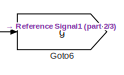
[diagram: root canvas - part 1/3, top center region]
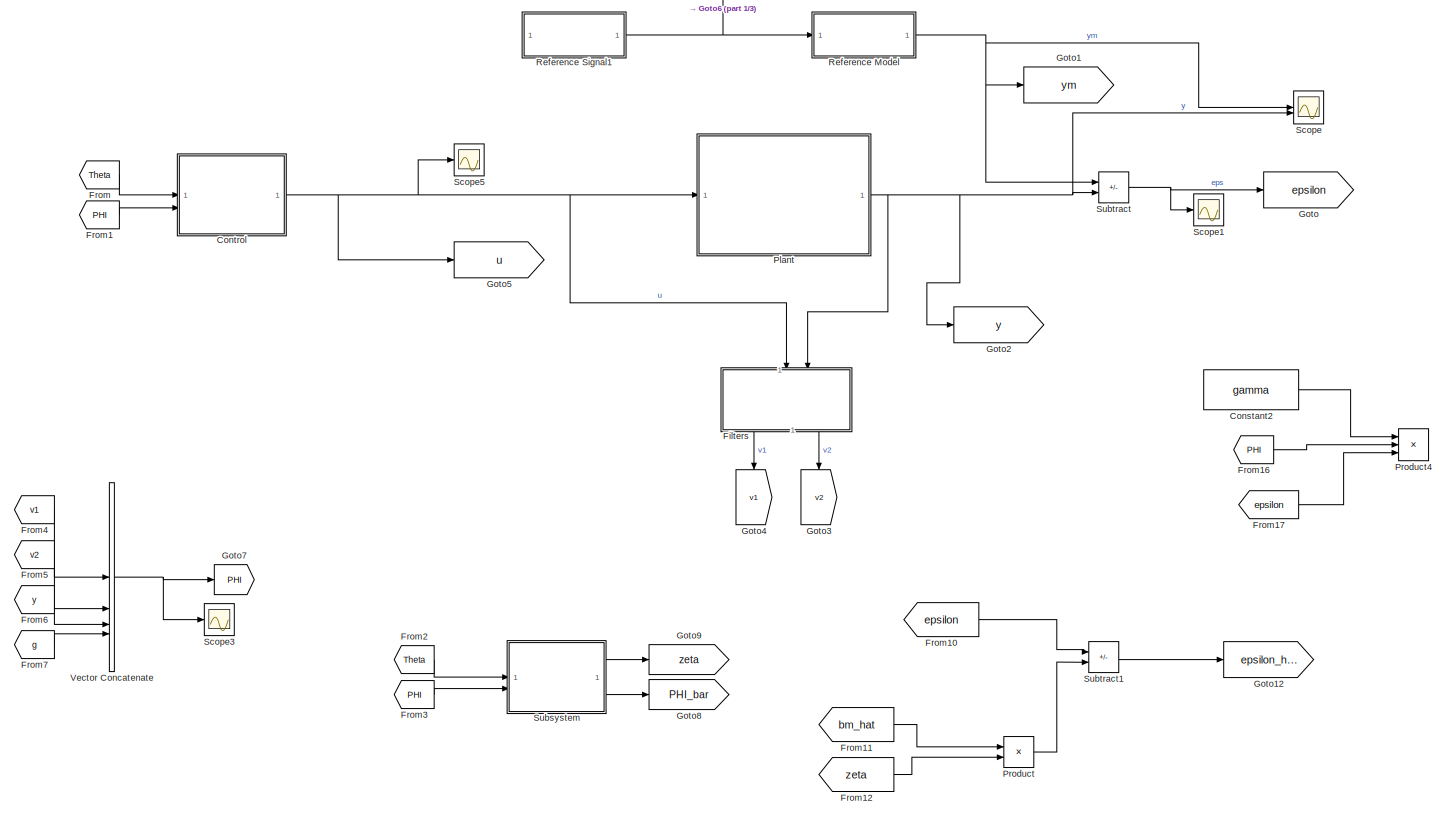
[diagram: root canvas - part 2/3, full width, middle band]
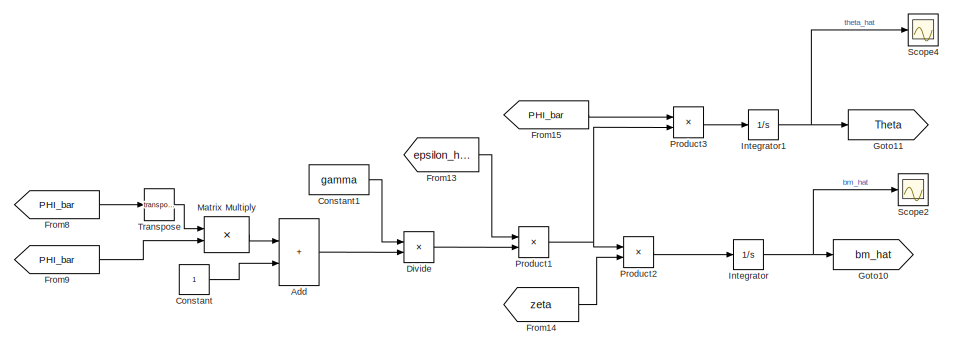
[diagram: root canvas - part 3/3, bottom center region]
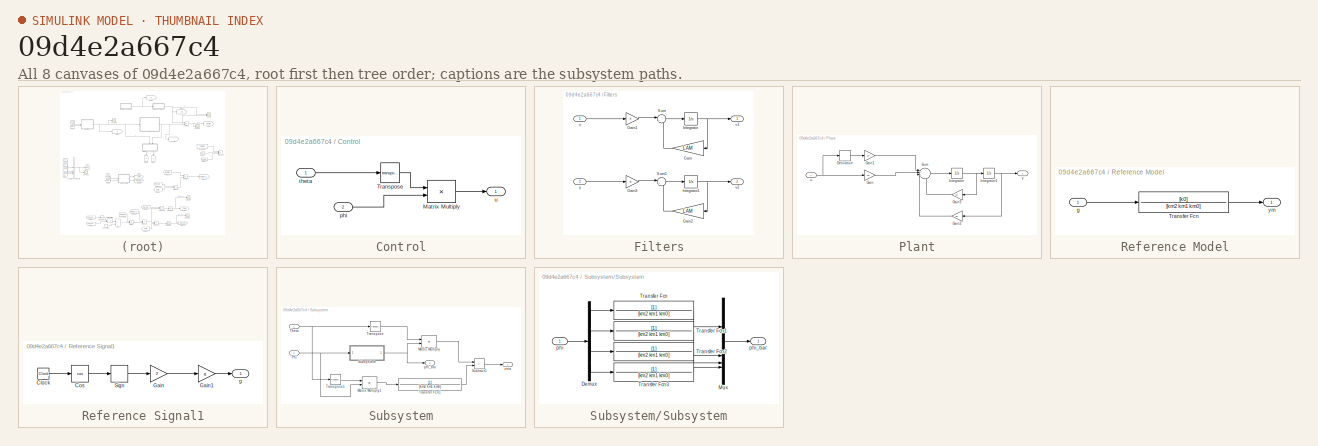
[diagram: thumbnail index - all 8 canvases of the model, root first then tree order]
MODEL slx_09d4e2a667c4
KIND model
CONFIG AbsTol = auto
CONFIG EnableMultiTasking = off
CONFIG FixedStep = auto
CONFIG MaxStep = auto
CONFIG MinStep = auto
CONFIG RelTol = 1e-3
CONFIG SampleTimeConstraint = Unconstrained
CONFIG SolverName = VariableStepAuto
CONFIG StartTime = 0.0
CONFIG StopTime = 100
BLOCK [Sum] Add
  IconShape = rectangular
BLOCK [Constant] Constant
BLOCK [Constant] Constant1
  Value = gamma
BLOCK [Constant] Constant2
  Value = gamma
BLOCK [SubSystem] Control
BLOCK [Product] Control/Matrix Multiply
  Multiplication = Matrix(*)
BLOCK [Math] Control/Transpose
  Operator = transpose
BLOCK [Inport] Control/phi
  Port = 2
BLOCK [Inport] Control/theta
BLOCK [Outport] Control/u
BLOCK [Product] Divide
  Inputs = */
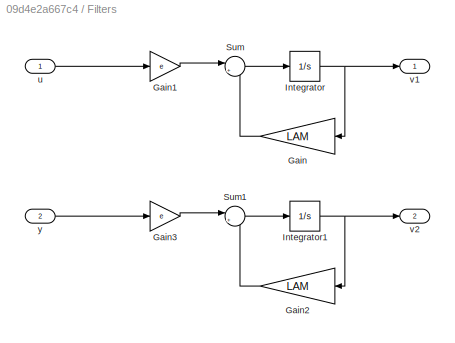
BLOCK [SubSystem] Filters
  NameLocation = left
BLOCK [Gain] Filters/Gain
  Gain = LAM
BLOCK [Gain] Filters/Gain1
  Gain = e
BLOCK [Gain] Filters/Gain2
  Gain = LAM
BLOCK [Gain] Filters/Gain3
  Gain = e
BLOCK [Integrator] Filters/Integrator
BLOCK [Integrator] Filters/Integrator1
  InitialCondition = y0
BLOCK [Sum] Filters/Sum
  Inputs = |++
BLOCK [Sum] Filters/Sum1
  Inputs = |++
BLOCK [Inport] Filters/u
BLOCK [Outport] Filters/v1
BLOCK [Outport] Filters/v2
  Port = 2
BLOCK [Inport] Filters/y
  Port = 2
BLOCK [From] From
  GotoTag = Theta
BLOCK [From] From1
  GotoTag = PHI
BLOCK [From] From10
  GotoTag = epsilon
BLOCK [From] From11
  GotoTag = bm_hat
BLOCK [From] From12
  GotoTag = zeta
BLOCK [From] From13
  GotoTag = epsilon_hat
BLOCK [From] From14
  GotoTag = zeta
BLOCK [From] From15
  GotoTag = PHI_bar
BLOCK [From] From16
  GotoTag = PHI
BLOCK [From] From17
  GotoTag = epsilon
BLOCK [From] From2
  GotoTag = Theta
BLOCK [From] From3
  GotoTag = PHI
BLOCK [From] From4
  GotoTag = v1
BLOCK [From] From5
  GotoTag = v2
BLOCK [From] From6
  GotoTag = y
BLOCK [From] From7
  GotoTag = g
BLOCK [From] From8
  GotoTag = PHI_bar
BLOCK [From] From9
  GotoTag = PHI_bar
BLOCK [Goto] Goto
  GotoTag = epsilon
BLOCK [Goto] Goto1
  GotoTag = ym
BLOCK [Goto] Goto10
  GotoTag = bm_hat
BLOCK [Goto] Goto11
  GotoTag = Theta
BLOCK [Goto] Goto12
  GotoTag = epsilon_hat
BLOCK [Goto] Goto2
  GotoTag = y
BLOCK [Goto] Goto3
  GotoTag = v2
  NameLocation = left
BLOCK [Goto] Goto4
  GotoTag = v1
  NameLocation = left
BLOCK [Goto] Goto5
  GotoTag = u
BLOCK [Goto] Goto6
  GotoTag = g
BLOCK [Goto] Goto7
  GotoTag = PHI
BLOCK [Goto] Goto8
  GotoTag = PHI_bar
BLOCK [Goto] Goto9
  GotoTag = zeta
BLOCK [Integrator] Integrator
BLOCK [Integrator] Integrator1
BLOCK [Product] Matrix Multiply
  Multiplication = Matrix(*)
BLOCK [SubSystem] Plant
BLOCK [Derivative] Plant/Derivative
  CoefficientInTFapproximation = 0
BLOCK [Gain] Plant/Gain
  Gain = b0
BLOCK [Gain] Plant/Gain1
  Gain = b1
BLOCK [Gain] Plant/Gain2
  Gain = a0
BLOCK [Gain] Plant/Gain3
  Gain = a1
BLOCK [Integrator] Plant/Integrator
  InitialCondition = dy0
BLOCK [Integrator] Plant/Integrator1
  InitialCondition = y0
BLOCK [Sum] Plant/Sum
  Inputs = |++--
BLOCK [Inport] Plant/u
BLOCK [Outport] Plant/y
BLOCK [Product] Product
BLOCK [Product] Product1
BLOCK [Product] Product2
BLOCK [Product] Product3
  Multiplication = Matrix(*)
BLOCK [Product] Product4
  Inputs = 3
BLOCK [SubSystem] Reference Model
BLOCK [TransferFcn] Reference Model/Transfer Fcn
  Denominator = [km2 km1 km0]
  Numerator = [k0]
BLOCK [Inport] Reference Model/g
BLOCK [Outport] Reference Model/ym
BLOCK [SubSystem] Reference Signal1
BLOCK [Clock] Reference Signal1/Clock
BLOCK [Trigonometry] Reference Signal1/Cos
  Operator = cos
BLOCK [Gain] Reference Signal1/Gain
  Gain = 2
BLOCK [Gain] Reference Signal1/Gain1
  Gain = g
BLOCK [Signum] Reference Signal1/Sign
BLOCK [Outport] Reference Signal1/g
BLOCK [Scope] Scope
  Floating = off
  NumInputPorts = 2
  ScopeSpecificationString = Simulink.scopes.TimeScopeBlockCfg('CurrentConfiguration', extmgr.ConfigurationSet(extmgr.Configuration('Core','General UI',true),extmgr.Configuration('Core','Source UI',true),extmgr.Configuration('Sources','WiredSimulink',true,'DataLoggingVariableName','ScopeData2'),extmgr.Configuration('Visuals','Time Domain',true,'SerializedDisplays',{struct('MinYLimReal','-5.1438','MaxYLimReal','6.75921','YLabe...<+1388ch>
BLOCK [Scope] Scope1
  Floating = off
  NumInputPorts = 1
  ScopeSpecificationString = Simulink.scopes.TimeScopeBlockCfg('CurrentConfiguration', extmgr.ConfigurationSet(extmgr.Configuration('Core','General UI',true),extmgr.Configuration('Core','Source UI',true),extmgr.Configuration('Sources','WiredSimulink',true,'DataLoggingVariableName','ScopeData1'),extmgr.Configuration('Visuals','Time Domain',true,'SerializedDisplays',{struct('MinYLimReal','-7.47421','MaxYLimReal','5.39573','YLab...<+1414ch>
BLOCK [Scope] Scope2
  Floating = off
  NumInputPorts = 1
  ScopeSpecificationString = Simulink.scopes.TimeScopeBlockCfg('CurrentConfiguration', extmgr.ConfigurationSet(extmgr.Configuration('Core','General UI',true),extmgr.Configuration('Core','Source UI',true),extmgr.Configuration('Sources','WiredSimulink',true,'DataLoggingVariableName','ScopeData2'),extmgr.Configuration('Visuals','Time Domain',true,'SerializedDisplays',{struct('MinYLimReal','-0.23421','MaxYLimReal','2.10788','YLab...<+1392ch>
BLOCK [Scope] Scope3
  Floating = off
  NumInputPorts = 1
  ScopeSpecificationString = Simulink.scopes.TimeScopeBlockCfg('CurrentConfiguration', extmgr.ConfigurationSet(extmgr.Configuration('Core','General UI',true),extmgr.Configuration('Core','Source UI',true),extmgr.Configuration('Sources','WiredSimulink',true,'DataLoggingVariableName','ScopeData3'),extmgr.Configuration('Visuals','Time Domain',true,'SerializedDisplays',{struct('MinYLimReal','-4.09317','MaxYLimReal','2.67702','YLab...<+1515ch>
BLOCK [Scope] Scope4
  Floating = off
  NumInputPorts = 1
  ScopeSpecificationString = Simulink.scopes.TimeScopeBlockCfg('CurrentConfiguration', extmgr.ConfigurationSet(extmgr.Configuration('Core','General UI',true),extmgr.Configuration('Core','Source UI',true),extmgr.Configuration('Sources','WiredSimulink',true,'DataLoggingVariableName','ScopeData1'),extmgr.Configuration('Visuals','Time Domain',true,'SerializedDisplays',{struct('MinYLimReal','-3.1446','MaxYLimReal','2.29264','YLabe...<+1568ch>
BLOCK [Scope] Scope5
  Floating = off
  NumInputPorts = 1
  ScopeSpecificationString = Simulink.scopes.TimeScopeBlockCfg('CurrentConfiguration', extmgr.ConfigurationSet(extmgr.Configuration('Core','General UI',true),extmgr.Configuration('Core','Source UI',true),extmgr.Configuration('Sources','WiredSimulink',true,'DataLoggingVariableName','ScopeData1'),extmgr.Configuration('Visuals','Time Domain',true,'SerializedDisplays',{struct('MinYLimReal','-4.3707','MaxYLimReal','4.59079','YLabe...<+1383ch>
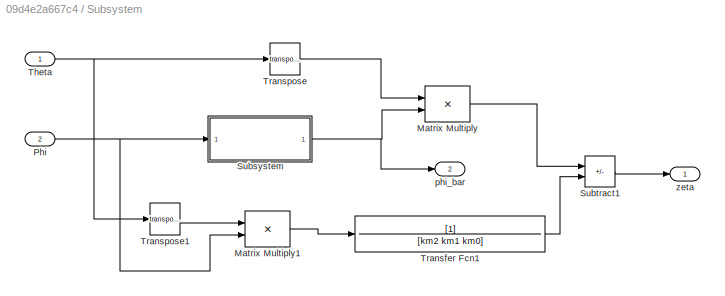
BLOCK [SubSystem] Subsystem
BLOCK [Product] Subsystem/Matrix Multiply
  Multiplication = Matrix(*)
BLOCK [Product] Subsystem/Matrix Multiply1
  Multiplication = Matrix(*)
BLOCK [Inport] Subsystem/Phi
  Port = 2
BLOCK [SubSystem] Subsystem/Subsystem
BLOCK [Demux] Subsystem/Subsystem/Demux
BLOCK [Mux] Subsystem/Subsystem/Mux
  DisplayOption = bar
BLOCK [TransferFcn] Subsystem/Subsystem/Transfer Fcn
  Denominator = [km2 km1 km0]
BLOCK [TransferFcn] Subsystem/Subsystem/Transfer Fcn1
  Denominator = [km2 km1 km0]
BLOCK [TransferFcn] Subsystem/Subsystem/Transfer Fcn2
  Denominator = [km2 km1 km0]
BLOCK [TransferFcn] Subsystem/Subsystem/Transfer Fcn3
  Denominator = [km2 km1 km0]
BLOCK [Inport] Subsystem/Subsystem/phi
BLOCK [Outport] Subsystem/Subsystem/phi_bar
BLOCK [Sum] Subsystem/Subtract1
  IconShape = rectangular
  Inputs = +-
BLOCK [Inport] Subsystem/Theta
BLOCK [TransferFcn] Subsystem/Transfer Fcn1
  Denominator = [km2 km1 km0]
BLOCK [Math] Subsystem/Transpose
  Operator = transpose
BLOCK [Math] Subsystem/Transpose1
  Operator = transpose
BLOCK [Outport] Subsystem/phi_bar
  Port = 2
BLOCK [Outport] Subsystem/zeta
BLOCK [Sum] Subtract
  IconShape = rectangular
  Inputs = +-
BLOCK [Sum] Subtract1
  IconShape = rectangular
  Inputs = +-
BLOCK [Math] Transpose
  Operator = transpose
BLOCK [Concatenate] Vector Concatenate
  Mode = Multidimensional array
  NumInputs = 4
LINE Add:1 -> Divide:2
LINE Constant1:1 -> Divide:1
LINE Constant2:1 -> Product4:1
LINE Constant:1 -> Add:2
LINE Control/Matrix Multiply:1 -> Control/u:1
LINE Control/Transpose:1 -> Control/Matrix Multiply:1
LINE Control/phi:1 -> Control/Matrix Multiply:2
LINE Control/theta:1 -> Control/Transpose:1
NET Control:1 -> Filters:1, Goto5:1, Plant:1, Scope5:1
LINE Divide:1 -> Product1:2
LINE Filters/Gain1:1 -> Filters/Sum:1
LINE Filters/Gain2:1 -> Filters/Sum1:2
LINE Filters/Gain3:1 -> Filters/Sum1:1
LINE Filters/Gain:1 -> Filters/Sum:2
NET Filters/Integrator1:1 -> Filters/Gain2:1, Filters/v2:1
NET Filters/Integrator:1 -> Filters/Gain:1, Filters/v1:1
LINE Filters/Sum1:1 -> Filters/Integrator1:1
LINE Filters/Sum:1 -> Filters/Integrator:1
LINE Filters/u:1 -> Filters/Gain1:1
LINE Filters/y:1 -> Filters/Gain3:1
LINE Filters:1 -> Goto4:1
LINE Filters:2 -> Goto3:1
LINE From10:1 -> Subtract1:1
LINE From11:1 -> Product:1
LINE From12:1 -> Product:2
LINE From13:1 -> Product1:1
LINE From14:1 -> Product2:2
LINE From15:1 -> Product3:1
LINE From16:1 -> Product4:2
LINE From17:1 -> Product4:3
LINE From1:1 -> Control:2
LINE From2:1 -> Subsystem:1
LINE From3:1 -> Subsystem:2
LINE From4:1 -> Vector Concatenate:1
LINE From5:1 -> Vector Concatenate:2
LINE From6:1 -> Vector Concatenate:3
LINE From7:1 -> Vector Concatenate:4
LINE From8:1 -> Transpose:1
LINE From9:1 -> Matrix Multiply:2
LINE From:1 -> Control:1
NET Integrator1:1 -> Goto11:1, Scope4:1
NET Integrator:1 -> Goto10:1, Scope2:1
LINE Matrix Multiply:1 -> Add:1
LINE Plant/Derivative:1 -> Plant/Gain1:1
LINE Plant/Gain1:1 -> Plant/Sum:1
LINE Plant/Gain2:1 -> Plant/Sum:3
LINE Plant/Gain3:1 -> Plant/Sum:4
LINE Plant/Gain:1 -> Plant/Sum:2
NET Plant/Integrator1:1 -> Plant/Gain2:1, Plant/y:1
NET Plant/Integrator:1 -> Plant/Gain3:1, Plant/Integrator1:1
LINE Plant/Sum:1 -> Plant/Integrator:1
NET Plant/u:1 -> Plant/Derivative:1, Plant/Gain:1
NET Plant:1 -> Filters:2, Goto2:1, Scope:2, Subtract:2
NET Product1:1 -> Product2:1, Product3:2
LINE Product2:1 -> Integrator:1
LINE Product3:1 -> Integrator1:1
LINE Product:1 -> Subtract1:2
LINE Reference Model/Transfer Fcn:1 -> Reference Model/ym:1
LINE Reference Model/g:1 -> Reference Model/Transfer Fcn:1
NET Reference Model:1 -> Goto1:1, Scope:1, Subtract:1
LINE Reference Signal1/Clock:1 -> Reference Signal1/Cos:1
LINE Reference Signal1/Cos:1 -> Reference Signal1/Sign:1
LINE Reference Signal1/Gain1:1 -> Reference Signal1/g:1
LINE Reference Signal1/Gain:1 -> Reference Signal1/Gain1:1
LINE Reference Signal1/Sign:1 -> Reference Signal1/Gain:1
NET Reference Signal1:1 -> Goto6:1, Reference Model:1
LINE Subsystem/Matrix Multiply1:1 -> Subsystem/Transfer Fcn1:1
LINE Subsystem/Matrix Multiply:1 -> Subsystem/Subtract1:1
NET Subsystem/Phi:1 -> Subsystem/Matrix Multiply1:2, Subsystem/Subsystem:1
LINE Subsystem/Subsystem/Demux:1 -> Subsystem/Subsystem/Transfer Fcn:1
LINE Subsystem/Subsystem/Demux:2 -> Subsystem/Subsystem/Transfer Fcn1:1
LINE Subsystem/Subsystem/Demux:3 -> Subsystem/Subsystem/Transfer Fcn2:1
LINE Subsystem/Subsystem/Demux:4 -> Subsystem/Subsystem/Transfer Fcn3:1
LINE Subsystem/Subsystem/Mux:1 -> Subsystem/Subsystem/phi_bar:1
LINE Subsystem/Subsystem/Transfer Fcn1:1 -> Subsystem/Subsystem/Mux:2
LINE Subsystem/Subsystem/Transfer Fcn2:1 -> Subsystem/Subsystem/Mux:3
LINE Subsystem/Subsystem/Transfer Fcn3:1 -> Subsystem/Subsystem/Mux:4
LINE Subsystem/Subsystem/Transfer Fcn:1 -> Subsystem/Subsystem/Mux:1
LINE Subsystem/Subsystem/phi:1 -> Subsystem/Subsystem/Demux:1
NET Subsystem/Subsystem:1 -> Subsystem/Matrix Multiply:2, Subsystem/phi_bar:1
LINE Subsystem/Subtract1:1 -> Subsystem/zeta:1
NET Subsystem/Theta:1 -> Subsystem/Transpose1:1, Subsystem/Transpose:1
LINE Subsystem/Transfer Fcn1:1 -> Subsystem/Subtract1:2
LINE Subsystem/Transpose1:1 -> Subsystem/Matrix Multiply1:1
LINE Subsystem/Transpose:1 -> Subsystem/Matrix Multiply:1
LINE Subsystem:1 -> Goto9:1
LINE Subsystem:2 -> Goto8:1
LINE Subtract1:1 -> Goto12:1
NET Subtract:1 -> Goto:1, Scope1:1
LINE Transpose:1 -> Matrix Multiply:1
NET Vector Concatenate:1 -> Goto7:1, Scope3:1
note: NET lines group one-source signal fan-out (src -> all destinations, sorted); 1:1 wires keep LINE
